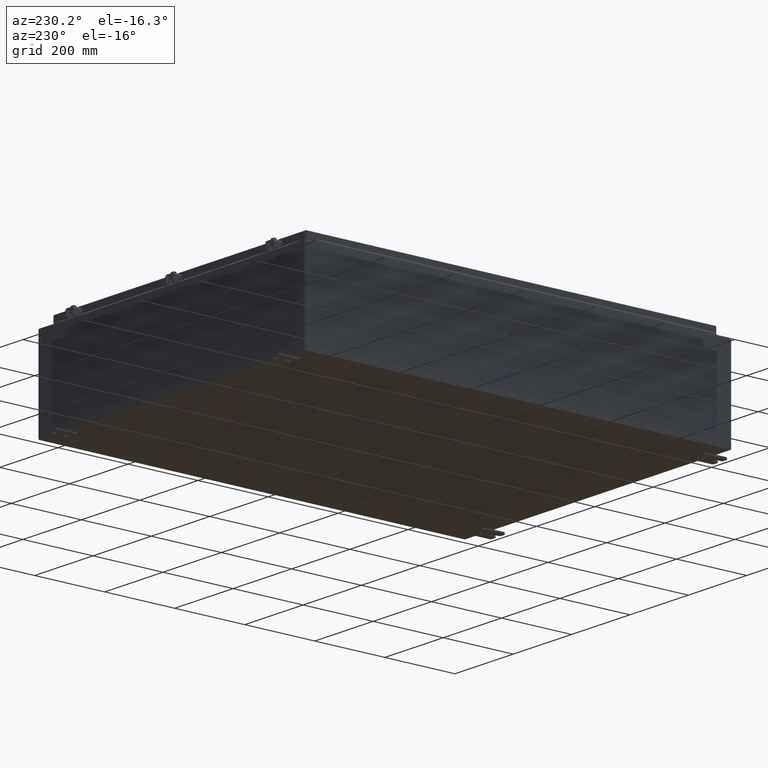
[diagram: clean part render]
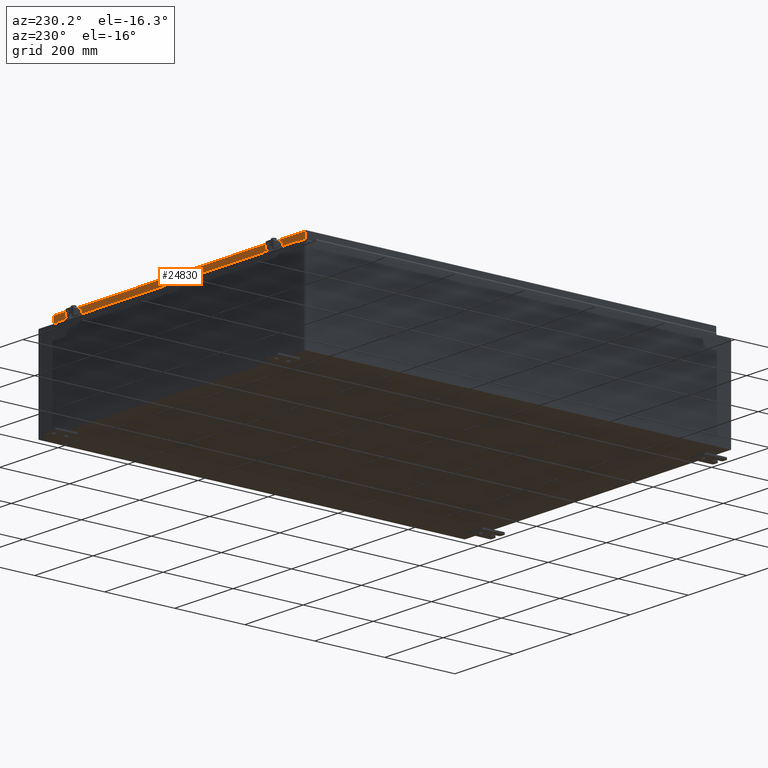
[diagram: same view with one face highlighted and labeled with its STEP entity id]
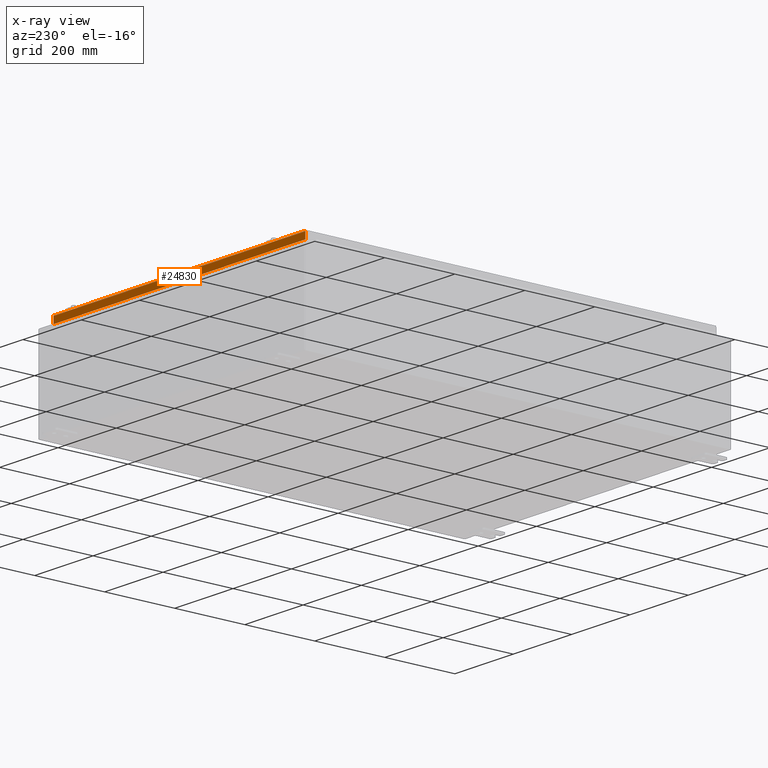
[diagram: x-ray of the same camera — body ghosted, the highlighted face saturated]
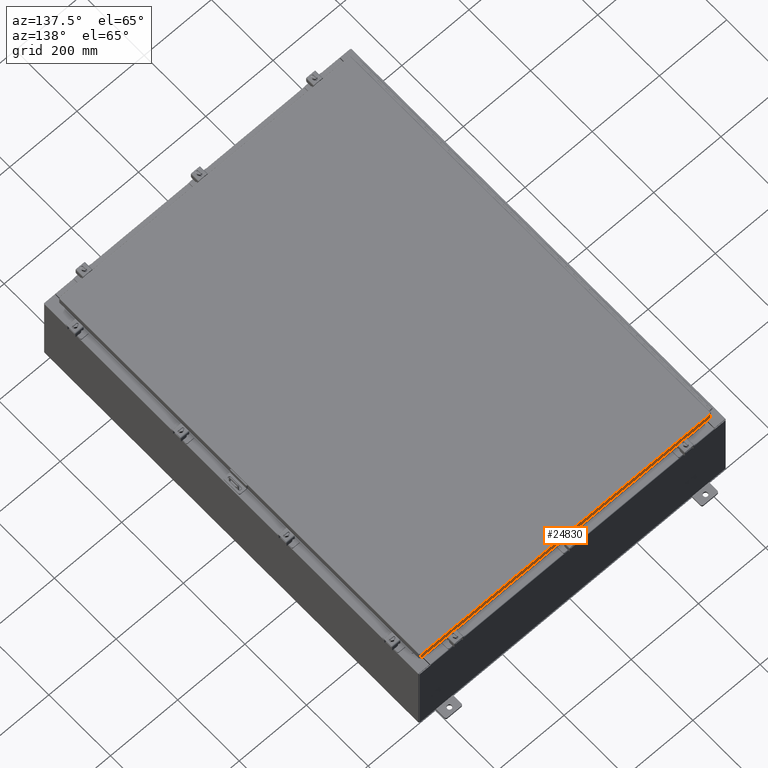
[diagram: same view with one face highlighted and labeled with its STEP entity id]
A machine part, auxiliary view. The second image highlights one B-rep face of the part: STEP entity #24830.
The next image is the same camera in x-ray: the body ghosted, the highlighted face saturated — about 0% of this face is hidden behind the body in this view.
A second angle (auxiliary view) of the same face is appended — the face is thin or edge-on in the first view.
In plain terms, the highlighted planar face has unit normal (0, -1, -0).
Its self-contained STEP definition (entity closure, byte-faithful):
#1221 = VERTEX_POINT ( 'NONE', #2970 ) ;
#2283 = EDGE_CURVE ( 'NONE', #34631, #25770, #4639, .T. ) ;
#2970 = CARTESIAN_POINT ( 'NONE',  ( -16.23915786437625600, 23.09400000000000100, -0.8500000000000081900 ) ) ;
#3144 = VECTOR ( 'NONE', #47434, 39.37007874015748100 ) ;
#3652 = ORIENTED_EDGE ( 'NONE', *, *, #10238, .F. ) ;
#3970 = DIRECTION ( 'NONE',  ( -0.0000000000000000000, 5.637761885544689500E-015, -1.000000000000000000 ) ) ;
#4639 = LINE ( 'NONE', #20329, #29427 ) ;
#4793 = VERTEX_POINT ( 'NONE', #50323 ) ;
#10238 = EDGE_CURVE ( 'NONE', #1221, #44993, #20082, .T. ) ;
#10639 = EDGE_CURVE ( 'NONE', #44993, #40382, #27882, .T. ) ;
#11525 = DIRECTION ( 'NONE',  ( 1.000000000000000000, -0.0000000000000000000, -0.0000000000000000000 ) ) ;
#12307 = AXIS2_PLACEMENT_3D ( 'NONE', #44673, #48816, #23822 ) ;
#13563 = ORIENTED_EDGE ( 'NONE', *, *, #2283, .F. ) ;
#15447 = CARTESIAN_POINT ( 'NONE',  ( -17.07799999999999600, 23.09400000000000500, -0.08769999999999547600 ) ) ;
#15474 = VECTOR ( 'NONE', #50090, 39.37007874015748100 ) ;
#15744 = CARTESIAN_POINT ( 'NONE',  ( -16.23915786437625600, 23.09400000000000100, -0.8500000000000081900 ) ) ;
#15797 = CARTESIAN_POINT ( 'NONE',  ( 16.98915786437627100, 23.09400000000000500, 1.304592866407806800E-013 ) ) ;
#17756 = CARTESIAN_POINT ( 'NONE',  ( -16.98915786437626400, 23.09400000000000800, -0.8500000000000038600 ) ) ;
#18191 = EDGE_CURVE ( 'NONE', #4793, #34631, #33842, .T. ) ;
#19358 = EDGE_LOOP ( 'NONE', ( #40816, #35488, #41605, #3652, #44749, #13563 ) ) ;
#19490 = PLANE ( 'NONE',  #12307 ) ;
#20082 = LINE ( 'NONE', #15744, #52049 ) ;
#20329 = CARTESIAN_POINT ( 'NONE',  ( -16.98915786437626400, 23.09400000000000500, -0.07469999999999958600 ) ) ;
#20830 = VECTOR ( 'NONE', #44994, 39.37007874015748100 ) ;
#22081 = CARTESIAN_POINT ( 'NONE',  ( -16.98915786437626400, 23.09400000000000500, -0.08769999999999549000 ) ) ;
#22409 = CARTESIAN_POINT ( 'NONE',  ( -17.07799999999999600, 23.09400000000000800, -0.8500000000000038600 ) ) ;
#23822 = DIRECTION ( 'NONE',  ( 0.0000000000000000000, 5.637761885544689500E-015, -1.000000000000000000 ) ) ;
#24830 = ADVANCED_FACE ( 'NONE', ( #43225 ), #19490, .F. ) ;
#25277 = CARTESIAN_POINT ( 'NONE',  ( -17.07799999999999600, 23.09400000000000800, -0.8500000000000038600 ) ) ;
#25770 = VERTEX_POINT ( 'NONE', #17756 ) ;
#27294 = CARTESIAN_POINT ( 'NONE',  ( 16.23915786437626400, 23.09400000000000100, -0.8500000000000081900 ) ) ;
#27882 = LINE ( 'NONE', #22409, #3144 ) ;
#28820 = EDGE_CURVE ( 'NONE', #4793, #40382, #52784, .T. ) ;
#29427 = VECTOR ( 'NONE', #3970, 39.37007874015748100 ) ;
#32495 = VECTOR ( 'NONE', #48954, 39.37007874015748100 ) ;
#33842 = LINE ( 'NONE', #15447, #32495 ) ;
#34631 = VERTEX_POINT ( 'NONE', #22081 ) ;
#35488 = ORIENTED_EDGE ( 'NONE', *, *, #28820, .T. ) ;
#37687 = LINE ( 'NONE', #25277, #15474 ) ;
#40382 = VERTEX_POINT ( 'NONE', #41687 ) ;
#40816 = ORIENTED_EDGE ( 'NONE', *, *, #18191, .F. ) ;
#41370 = EDGE_CURVE ( 'NONE', #25770, #1221, #37687, .T. ) ;
#41605 = ORIENTED_EDGE ( 'NONE', *, *, #10639, .F. ) ;
#41687 = CARTESIAN_POINT ( 'NONE',  ( 16.98915786437627100, 23.09400000000000800, -0.8499999999999996400 ) ) ;
#43225 = FACE_OUTER_BOUND ( 'NONE', #19358, .T. ) ;
#44673 = CARTESIAN_POINT ( 'NONE',  ( -1.614087649790572800E-029, 23.09400000000000500, 1.304592866407806800E-013 ) ) ;
#44749 = ORIENTED_EDGE ( 'NONE', *, *, #41370, .F. ) ;
#44993 = VERTEX_POINT ( 'NONE', #27294 ) ;
#44994 = DIRECTION ( 'NONE',  ( 0.0000000000000000000, 5.637761885544689500E-015, -1.000000000000000000 ) ) ;
#47434 = DIRECTION ( 'NONE',  ( 1.000000000000000000, 8.758115402030108600E-047, 1.239713195391617600E-016 ) ) ;
#48816 = DIRECTION ( 'NONE',  ( 6.989207801985677300E-031, -1.000000000000000000, -5.637761885544689500E-015 ) ) ;
#48954 = DIRECTION ( 'NONE',  ( -1.000000000000000000, -6.989207801985679100E-031, -3.922586267643529200E-045 ) ) ;
#50090 = DIRECTION ( 'NONE',  ( 1.000000000000000000, 8.758115402030108600E-047, 1.239713195391617600E-016 ) ) ;
#50323 = CARTESIAN_POINT ( 'NONE',  ( 16.98915786437627100, 23.09400000000000500, -0.08769999999999547600 ) ) ;
#52049 = VECTOR ( 'NONE', #11525, 39.37007874015748100 ) ;
#52784 = LINE ( 'NONE', #15797, #20830 ) ;